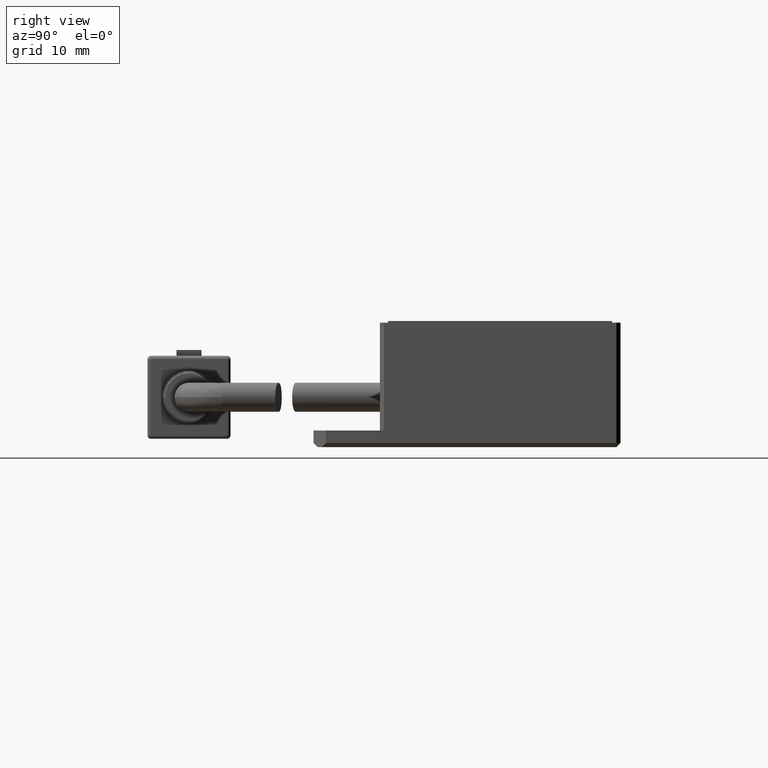
[diagram: clean part render]
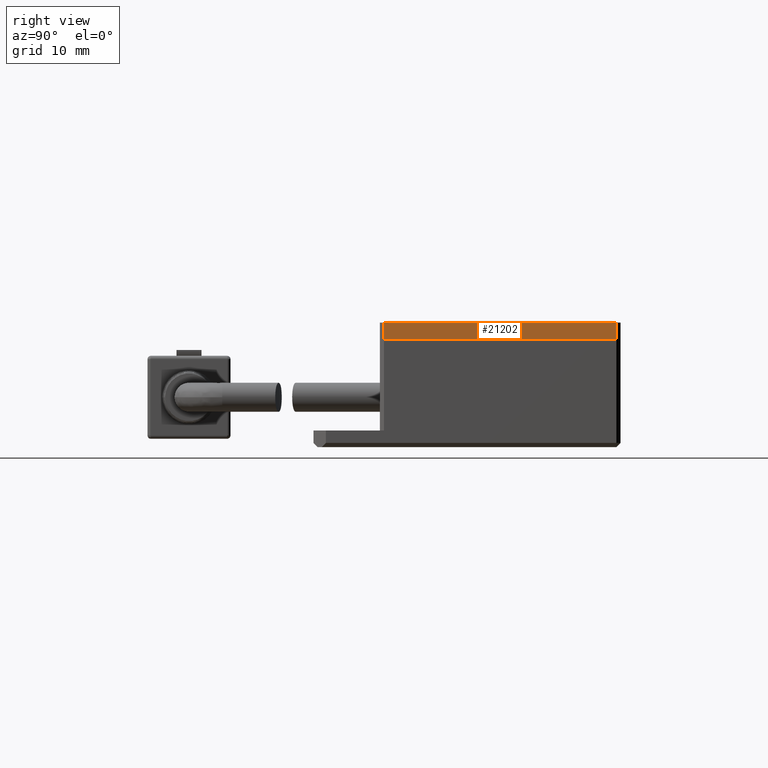
[diagram: same view with one face highlighted and labeled with its STEP entity id]
A machine part, right view. The second image highlights one B-rep face of the part: STEP entity #21202.
In plain terms, the highlighted planar face has unit normal (-1, -0, 0).
Its self-contained STEP definition (entity closure, byte-faithful):
#914 = LINE ( 'NONE', #17983, #16666 ) ;
#1899 = PLANE ( 'NONE',  #16146 ) ;
#2303 = VERTEX_POINT ( 'NONE', #12980 ) ;
#2981 = CARTESIAN_POINT ( 'NONE',  ( 18.97059946544482800, 13.94635357006492300, 12.99999999998363100 ) ) ;
#3312 = VECTOR ( 'NONE', #5198, 1000.000000000000000 ) ;
#3491 = FACE_OUTER_BOUND ( 'NONE', #22421, .T. ) ;
#5038 = DIRECTION ( 'NONE',  ( -1.196361017915040000E-016, 1.000000000000000000, -0.0000000000000000000 ) ) ;
#5198 = DIRECTION ( 'NONE',  ( 0.0000000000000000000, 0.0000000000000000000, 1.000000000000000000 ) ) ;
#5584 = ORIENTED_EDGE ( 'NONE', *, *, #18940, .F. ) ;
#7896 = VECTOR ( 'NONE', #16775, 1000.000000000000000 ) ;
#7940 = VERTEX_POINT ( 'NONE', #24120 ) ;
#8607 = LINE ( 'NONE', #2981, #13426 ) ;
#9478 = ORIENTED_EDGE ( 'NONE', *, *, #16541, .F. ) ;
#9599 = CARTESIAN_POINT ( 'NONE',  ( 18.97059946544482800, 13.44635357006492500, 10.99999999998363100 ) ) ;
#9897 = DIRECTION ( 'NONE',  ( -0.0000000000000000000, -0.0000000000000000000, -1.000000000000000000 ) ) ;
#10249 = CARTESIAN_POINT ( 'NONE',  ( 18.97059946544482800, 13.94635357006492300, 12.99999999998363100 ) ) ;
#10813 = VERTEX_POINT ( 'NONE', #9599 ) ;
#11214 = CARTESIAN_POINT ( 'NONE',  ( 18.97059946544483100, -14.55364642993506600, 12.99999999998363100 ) ) ;
#11830 = EDGE_CURVE ( 'NONE', #22008, #2303, #8607, .T. ) ;
#12333 = DIRECTION ( 'NONE',  ( 1.196361017915040000E-016, -1.000000000000000000, 0.0000000000000000000 ) ) ;
#12980 = CARTESIAN_POINT ( 'NONE',  ( 18.97059946544482800, 13.44635357006492300, 12.99999999998363100 ) ) ;
#13426 = VECTOR ( 'NONE', #5038, 1000.000000000000000 ) ;
#14724 = CARTESIAN_POINT ( 'NONE',  ( 18.97059946544483500, -15.05364642993506900, 10.99999999998363100 ) ) ;
#16146 = AXIS2_PLACEMENT_3D ( 'NONE', #10249, #24601, #12333 ) ;
#16541 = EDGE_CURVE ( 'NONE', #7940, #22008, #19059, .T. ) ;
#16666 = VECTOR ( 'NONE', #9897, 1000.000000000000000 ) ;
#16775 = DIRECTION ( 'NONE',  ( -0.0000000000000000000, 1.000000000000000000, 0.0000000000000000000 ) ) ;
#16893 = EDGE_CURVE ( 'NONE', #7940, #10813, #19494, .T. ) ;
#17509 = CARTESIAN_POINT ( 'NONE',  ( 18.97059946544483100, -14.55364642993506400, 12.99999999998363100 ) ) ;
#17983 = CARTESIAN_POINT ( 'NONE',  ( 18.97059946544482800, 13.44635357006492300, 12.99999999998363100 ) ) ;
#18940 = EDGE_CURVE ( 'NONE', #2303, #10813, #914, .T. ) ;
#19059 = LINE ( 'NONE', #17509, #3312 ) ;
#19494 = LINE ( 'NONE', #14724, #7896 ) ;
#21116 = ORIENTED_EDGE ( 'NONE', *, *, #11830, .F. ) ;
#21202 = ADVANCED_FACE ( 'NONE', ( #3491 ), #1899, .F. ) ;
#22008 = VERTEX_POINT ( 'NONE', #11214 ) ;
#22421 = EDGE_LOOP ( 'NONE', ( #9478, #25075, #5584, #21116 ) ) ;
#24120 = CARTESIAN_POINT ( 'NONE',  ( 18.97059946544483100, -14.55364642993506400, 10.99999999998363100 ) ) ;
#24601 = DIRECTION ( 'NONE',  ( -1.000000000000000000, -1.196361017915040000E-016, 0.0000000000000000000 ) ) ;
#25075 = ORIENTED_EDGE ( 'NONE', *, *, #16893, .T. ) ;